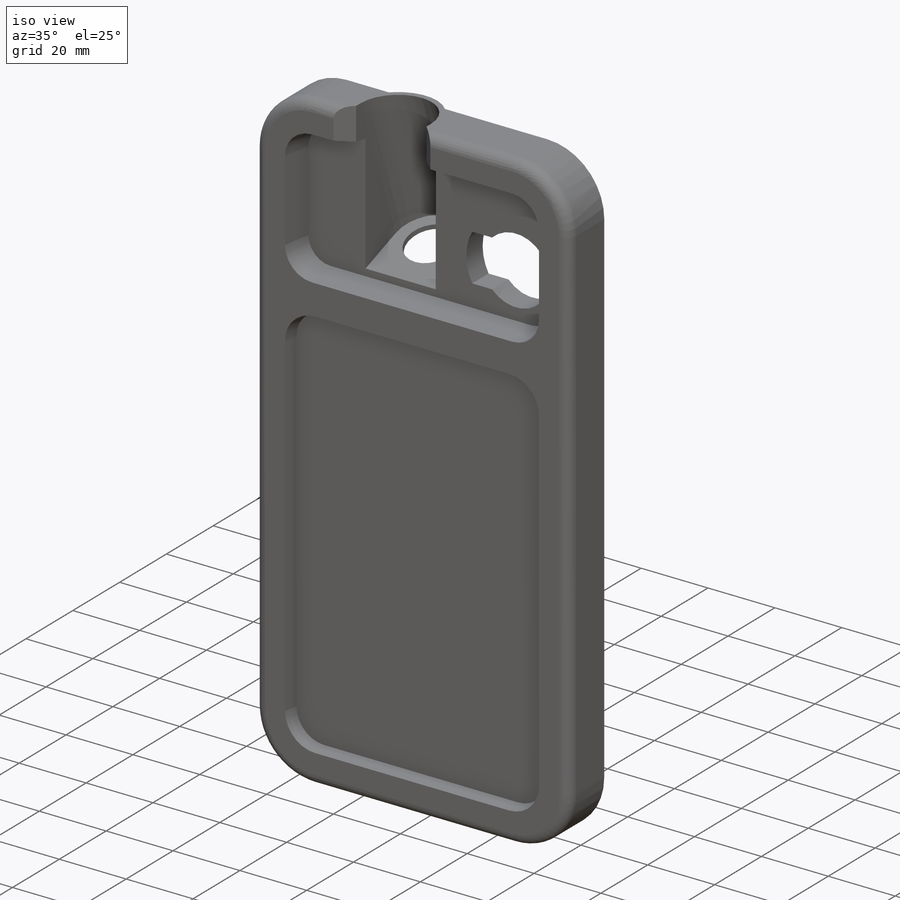
[diagram: iso view]
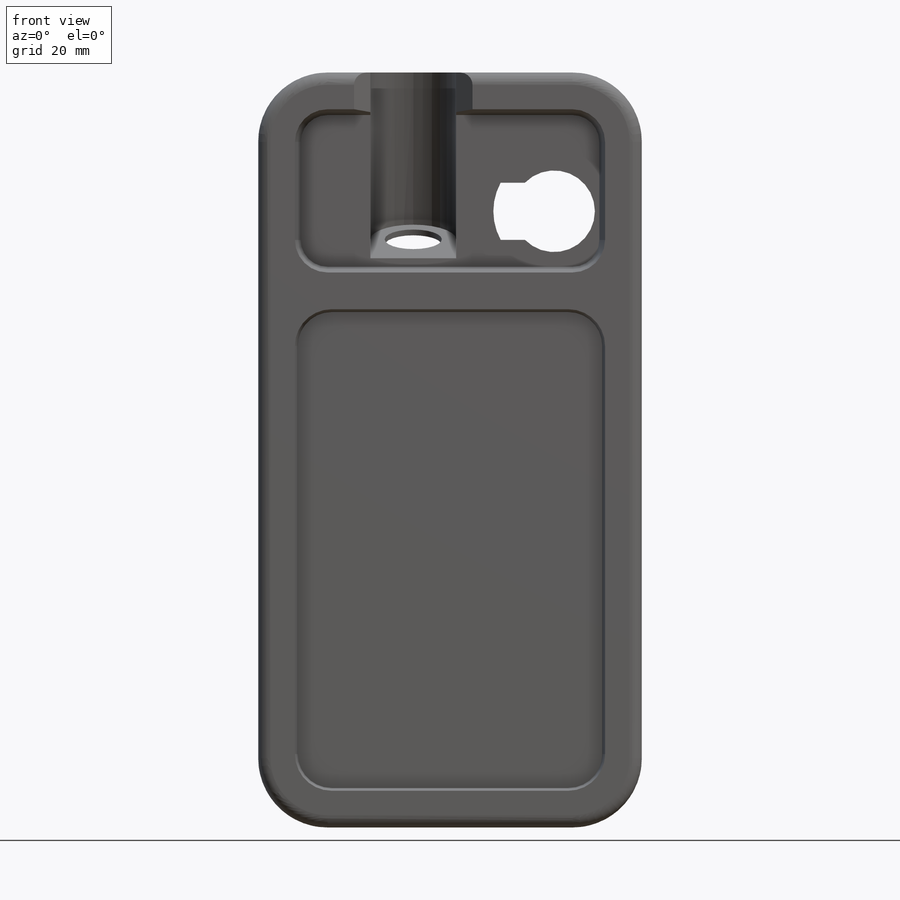
[diagram: front view]
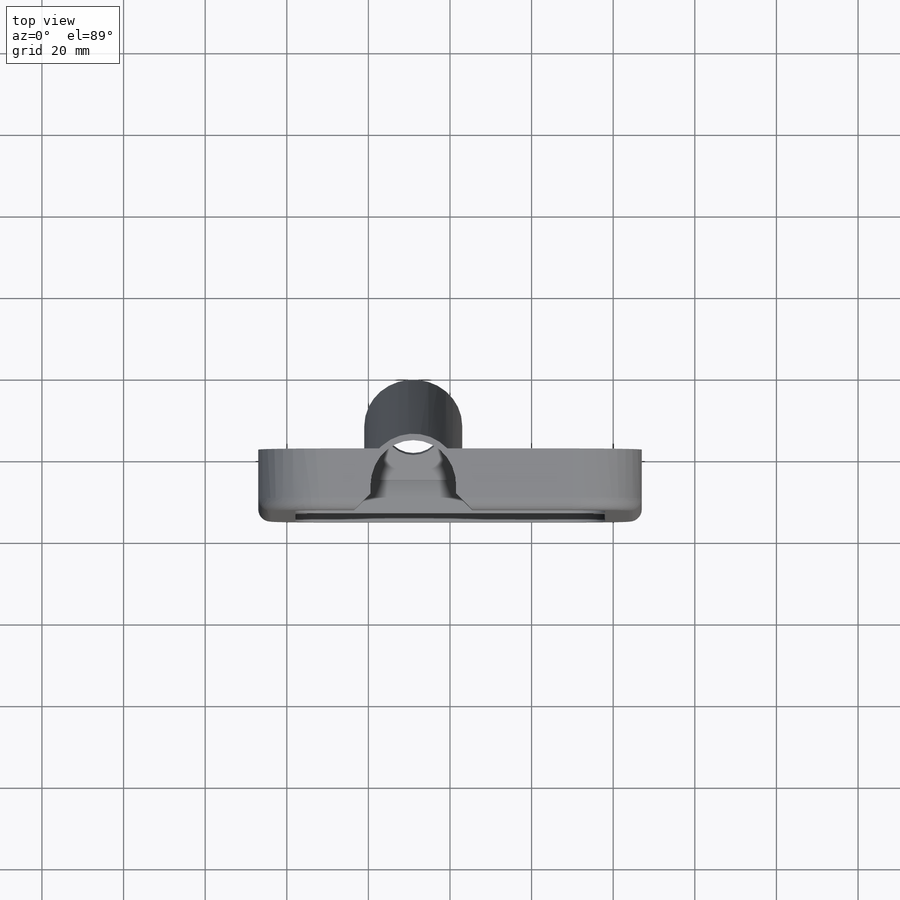
[diagram: top view]
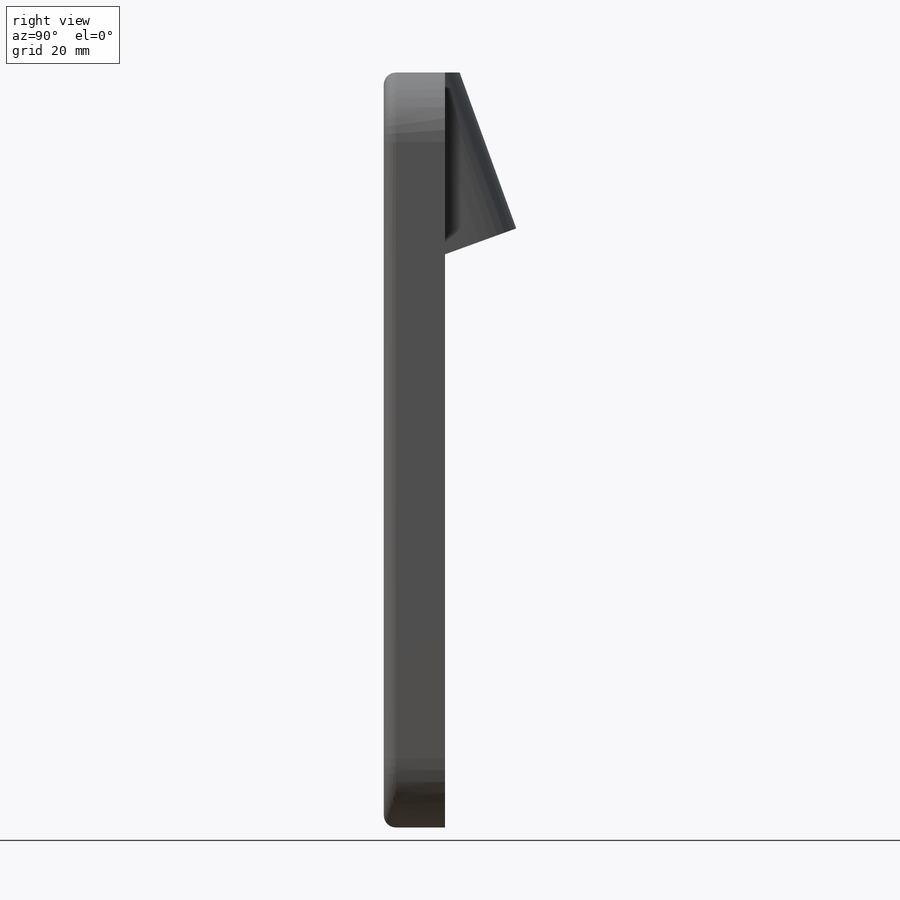
[diagram: right view]
SOLIDWORKS PART (.sldprt)
format: sldprt  version: not decoded by parser v0  size: 424,448 bytes
history: native  units: mm
features: sketch x9, cut_extrude x6, plane x4, extrude x2, fillet x2, material x1, chamfer x1, shell x1 (+13 scaffold rows collapsed)
feature tree (39):
  scaffold x13  (default folders/planes/origin — collapsed)
  material  "Материал <не указан>"
  plane  "Спереди"
  plane  "Сверху"
  plane  "Справа"
  sketch  "Эскиз1"  dims[D3=17.0mm D1=185.0mm D2=94.0mm]
  extrude  "Бобышка-Вытянуть1"  Depth=15mm
  plane  "Плоскость1"
  sketch  "Эскиз3"  dims[c1.D2=~14.598763mm c1.D3=12.0mm c1.D1=5.5mm c2.D2=38.0mm c2.D4=1.5mm]
  extrude  "Бобышка-Вытянуть2"  Depth=47mm
  sketch  "Эскиз2"  dims[D3=8.0mm D1=76.0mm D2=40.0mm D4=9.0mm]
  cut_extrude  "Вырез-Вытянуть1"  Depth=8mm
  sketch  "Эскиз5"  dims[D1=10.5mm]
  cut_extrude  "Вырез-Вытянуть3"  Depth=1.5mm
  sketch  "Эскиз8"  dims[D4=9.0mm D1=76.0mm D2=118.0mm D3=9.0mm]
  cut_extrude  "Вырез-Вытянуть6"  Depth=3.9mm
  sketch  "Эскиз10"
  cut_extrude  "Вырез-Вытянуть8"  [1 undecoded]
  sketch  "Эскиз7"  dims[c1.D2=~20.859531mm c1.D3=20.0mm c1.D4=1.0mm c1.D5=10.0mm c1.D1=21.5mm c2.D2=34.0mm c2.D5=12.0mm c2.D6=14.0mm]
  cut_extrude  "Вырез-Вытянуть5"  [1 undecoded]
  chamfer  "Фаска1"  Distance=4mm Angle=45deg
  shell  "Оболочка2"  Thickness=1.5mm
  sketch  "Эскиз6"  dims[D1=14.0mm]
  cut_extrude  "Вырез-Вытянуть4"  [1 undecoded]
  fillet  "Скругление1"  Radius=3mm
  sketch  "Эскиз9"  dims[D2=3.0mm D1=65.0mm]
  fillet  "Вырез-Вытянуть7"  [1 undecoded]
decode coverage: 16 of 21 modeling features carry decoded parameters
note: ~ marks probable driven/reference dimensions
note: 4 parameter values undecoded
summary: no parameter record found for 4 features
note: suppression state not decoded; provenance and decode notes live in map.json
